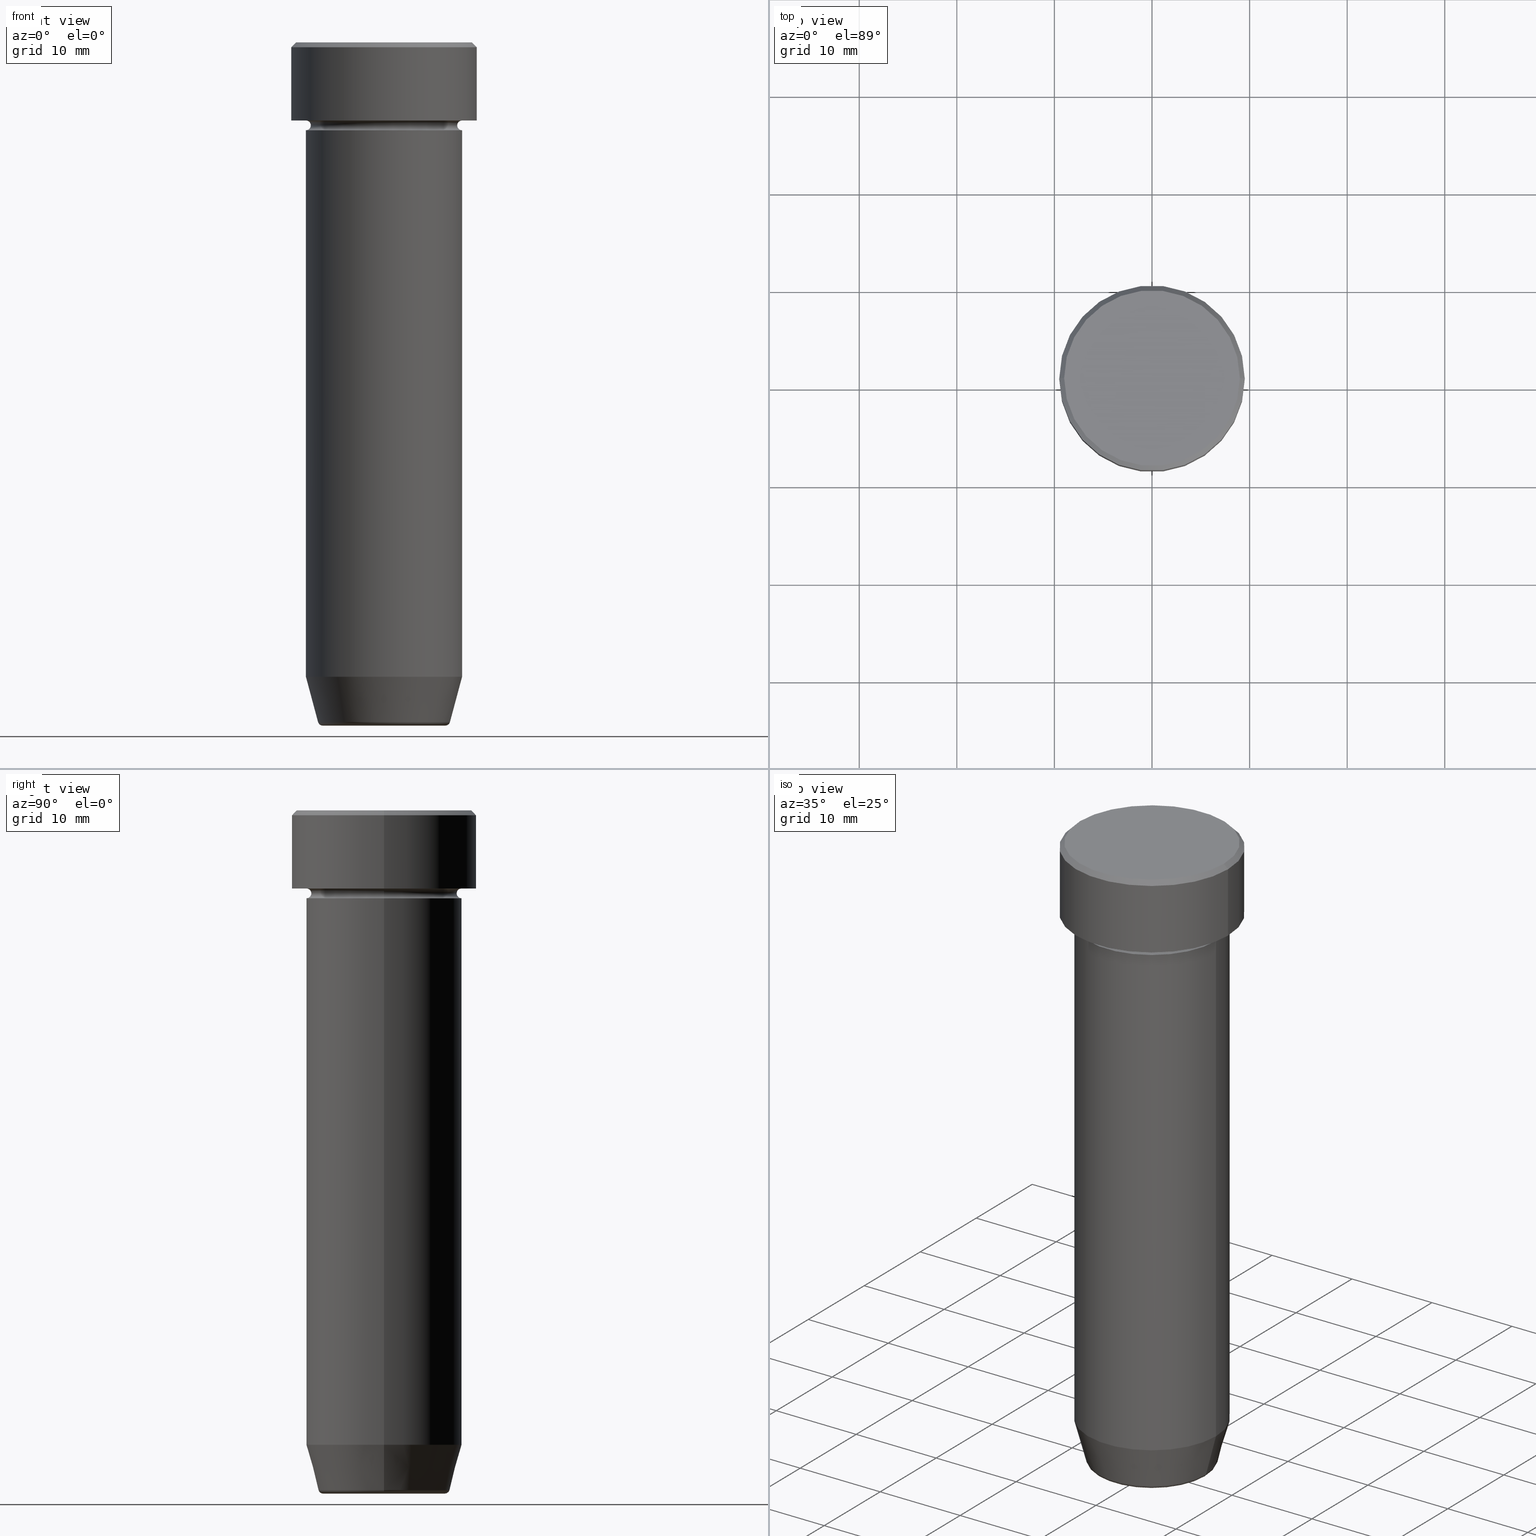
[diagram: canonical four-view strip — front | top / right | iso, engineering-drawing reading convention]
A machine part, canonical four-view strip (front | top / right | iso — engineering-drawing reading convention). The complete STEP part file that produces these views, byte-faithful:
ISO-10303-21;
HEADER;
FILE_DESCRIPTION (( 'STEP AP203' ),
    '1' );
FILE_NAME ('1d72.STEP',
    '2024-01-02T23:17:22',
    ( '' ),
    ( '' ),
    'SwSTEP 2.0',
    'SolidWorks 2019',
    '' );
FILE_SCHEMA (( 'CONFIG_CONTROL_DESIGN' ));
ENDSEC;

DATA;
#1 = CARTESIAN_POINT ( 'NONE',  ( 0.000000000000000000, 0.000000000000000000, 0.000000000000000000 ) ) ;
#2 =( NAMED_UNIT ( * ) SI_UNIT ( $, .STERADIAN. ) SOLID_ANGLE_UNIT ( ) );
#3 = DIRECTION ( 'NONE',  ( 1.000000000000000000, 0.000000000000000000, 0.000000000000000000 ) ) ;
#4 = PERSON_AND_ORGANIZATION ( #116, #417 ) ;
#5 = FACE_OUTER_BOUND ( 'NONE', #109, .T. ) ;
#6 = VERTEX_POINT ( 'NONE', #561 ) ;
#7 =( GEOMETRIC_REPRESENTATION_CONTEXT ( 3 ) GLOBAL_UNCERTAINTY_ASSIGNED_CONTEXT ( ( #211 ) ) GLOBAL_UNIT_ASSIGNED_CONTEXT ( ( #135, #467, #2 ) ) REPRESENTATION_CONTEXT ( 'NONE', 'WORKASPACE' ) );
#8 = LOCAL_TIME ( 0, 17, 22.00000000000000000, #306 ) ;
#9 = EDGE_LOOP ( 'NONE', ( #315, #324, #99, #50 ) ) ;
#10 = DIRECTION ( 'NONE',  ( 0.000000000000000000, 0.000000000000000000, -1.000000000000000000 ) ) ;
#11 = ORIENTED_EDGE ( 'NONE', *, *, #424, .T. ) ;
#12 = CYLINDRICAL_SURFACE ( 'NONE', #425, 8.000000000000000000 ) ;
#13 = APPROVAL_STATUS ( 'not_yet_approved' ) ;
#14 = PLANE ( 'NONE',  #85 ) ;
#15 = ORIENTED_EDGE ( 'NONE', *, *, #545, .T. ) ;
#16 = EDGE_CURVE ( 'NONE', #115, #524, #221, .T. ) ;
#17 = FACE_OUTER_BOUND ( 'NONE', #598, .T. ) ;
#18 = CIRCLE ( 'NONE', #490, 6.759553456999436882 ) ;
#19 = CARTESIAN_POINT ( 'NONE',  ( 0.000000000000000000, 0.000000000000000000, -70.00000000000000000 ) ) ;
#20 = PLANE ( 'NONE',  #501 ) ;
#21 = LINE ( 'NONE', #195, #298 ) ;
#22 = DIRECTION ( 'NONE',  ( 1.000000000000000000, 0.000000000000000000, 0.000000000000000000 ) ) ;
#23 = DIRECTION ( 'NONE',  ( 0.000000000000000000, 0.000000000000000000, -1.000000000000000000 ) ) ;
#24 = DIRECTION ( 'NONE',  ( 1.000000000000000000, 0.000000000000000000, 0.000000000000000000 ) ) ;
#25 = DIRECTION ( 'NONE',  ( -0.000000000000000000, -0.000000000000000000, 1.000000000000000000 ) ) ;
#26 = DATE_TIME_ROLE ( 'classification_date' ) ;
#27 = EDGE_CURVE ( 'NONE', #331, #524, #161, .T. ) ;
#28 = EDGE_LOOP ( 'NONE', ( #505, #496, #212, #230 ) ) ;
#29 = DIRECTION ( 'NONE',  ( 1.000000000000000000, 0.000000000000000000, 0.000000000000000000 ) ) ;
#30 = CARTESIAN_POINT ( 'NONE',  ( 0.000000000000000000, 0.000000000000000000, 0.000000000000000000 ) ) ;
#31 = VECTOR ( 'NONE', #511, 1000.000000000000000 ) ;
#32 = EDGE_CURVE ( 'NONE', #414, #43, #80, .T. ) ;
#33 = MANIFOLD_SOLID_BREP ( 'Zaoblit4', #362 ) ;
#34 = CONICAL_SURFACE ( 'NONE', #374, 6.660254037844381081, 0.2617993877991502405 ) ;
#35 = AXIS2_PLACEMENT_3D ( 'NONE', #581, #447, #354 ) ;
#36 = CYLINDRICAL_SURFACE ( 'NONE', #408, 9.500000000000000000 ) ;
#37 = CARTESIAN_POINT ( 'NONE',  ( 8.000000000000000000, 0.000000000000000000, 0.000000000000000000 ) ) ;
#38 = CIRCLE ( 'NONE', #535, 0.5000000000000004441 ) ;
#39 = DIRECTION ( 'NONE',  ( -0.2588190451025214611, 3.169619151431774186E-17, 0.9659258262890679791 ) ) ;
#40 = VERTEX_POINT ( 'NONE', #566 ) ;
#41 = MANIFOLD_SOLID_BREP ( 'Zkosen�1', #557 ) ;
#42 = DIRECTION ( 'NONE',  ( -0.000000000000000000, -0.000000000000000000, 1.000000000000000000 ) ) ;
#43 = VERTEX_POINT ( 'NONE', #90 ) ;
#44 = COORDINATED_UNIVERSAL_TIME_OFFSET ( 1, 0, .AHEAD. ) ;
#45 = VERTEX_POINT ( 'NONE', #570 ) ;
#46 = PRODUCT ( '1d72', '1d72', '', ( #416 ) ) ;
#47 = DIRECTION ( 'NONE',  ( 1.000000000000000000, 0.000000000000000000, 0.000000000000000000 ) ) ;
#48 = CIRCLE ( 'NONE', #286, 0.5000000000000004441 ) ;
#49 = ADVANCED_FACE ( 'NONE', ( #17 ), #34, .T. ) ;
#50 = ORIENTED_EDGE ( 'NONE', *, *, #243, .F. ) ;
#51 = LOCAL_TIME ( 0, 17, 22.00000000000000000, #523 ) ;
#52 = ORIENTED_EDGE ( 'NONE', *, *, #348, .T. ) ;
#53 = ORIENTED_EDGE ( 'NONE', *, *, #255, .F. ) ;
#54 = CARTESIAN_POINT ( 'NONE',  ( 0.000000000000000000, 0.000000000000000000, 0.000000000000000000 ) ) ;
#55 = DATE_AND_TIME ( #471, #205 ) ;
#56 = EDGE_CURVE ( 'NONE', #43, #45, #291, .T. ) ;
#57 = EDGE_LOOP ( 'NONE', ( #53, #317, #474, #314 ) ) ;
#58 = ORIENTED_EDGE ( 'NONE', *, *, #371, .T. ) ;
#59 = AXIS2_PLACEMENT_3D ( 'NONE', #532, #528, #29 ) ;
#60 = TOROIDAL_SURFACE ( 'NONE', #381, 6.276590543854900339, 0.5000000000000000000 ) ;
#61 = EDGE_CURVE ( 'NONE', #498, #188, #453, .T. ) ;
#62 = CARTESIAN_POINT ( 'NONE',  ( 0.000000000000000000, 0.000000000000000000, -9.000000000000001776 ) ) ;
#63 = APPROVAL_STATUS ( 'not_yet_approved' ) ;
#64 = CARTESIAN_POINT ( 'NONE',  ( 0.000000000000000000, 0.000000000000000000, -8.500000000000000000 ) ) ;
#65 = DIRECTION ( 'NONE',  ( 1.000000000000000000, 0.000000000000000000, 0.000000000000000000 ) ) ;
#66 = DIRECTION ( 'NONE',  ( -0.000000000000000000, -0.000000000000000000, 1.000000000000000000 ) ) ;
#67 = DIRECTION ( 'NONE',  ( -0.000000000000000000, -0.000000000000000000, 1.000000000000000000 ) ) ;
#68 = ADVANCED_FACE ( 'NONE', ( #69 ), #441, .F. ) ;
#69 = FACE_OUTER_BOUND ( 'NONE', #473, .T. ) ;
#70 = AXIS2_PLACEMENT_3D ( 'NONE', #360, #361, #548 ) ;
#71 = DIRECTION ( 'NONE',  ( 1.000000000000000000, 0.000000000000000000, 0.000000000000000000 ) ) ;
#72 = APPROVAL_DATE_TIME ( #55, #147 ) ;
#73 = AXIS2_PLACEMENT_3D ( 'NONE', #569, #284, #65 ) ;
#74 = CARTESIAN_POINT ( 'NONE',  ( 0.000000000000000000, 0.000000000000000000, -65.00000000000000000 ) ) ;
#75 = CARTESIAN_POINT ( 'NONE',  ( 0.000000000000000000, 0.000000000000000000, -0.4999999999999968914 ) ) ;
#76 = PERSON_AND_ORGANIZATION ( #116, #417 ) ;
#77 = FACE_OUTER_BOUND ( 'NONE', #57, .T. ) ;
#78 = ADVANCED_FACE ( 'NONE', ( #297 ), #288, .F. ) ;
#79 = DIRECTION ( 'NONE',  ( 1.000000000000000000, 0.000000000000000000, 0.000000000000000000 ) ) ;
#80 = CIRCLE ( 'NONE', #218, 6.276590543854900339 ) ;
#81 = PRODUCT_RELATED_PRODUCT_CATEGORY ( 'detail', '', ( #46 ) ) ;
#82 = DIRECTION ( 'NONE',  ( 1.000000000000000000, 0.000000000000000000, 0.000000000000000000 ) ) ;
#83 = ORIENTED_EDGE ( 'NONE', *, *, #567, .T. ) ;
#84 = FACE_OUTER_BOUND ( 'NONE', #303, .T. ) ;
#85 = AXIS2_PLACEMENT_3D ( 'NONE', #254, #481, #168 ) ;
#86 = ADVANCED_FACE ( 'NONE', ( #77 ), #292, .T. ) ;
#87 = EDGE_LOOP ( 'NONE', ( #200, #52, #527, #236 ) ) ;
#88 = EDGE_CURVE ( 'NONE', #342, #334, #507, .T. ) ;
#89 = CARTESIAN_POINT ( 'NONE',  ( -9.000000000000001776, 0.000000000000000000, 0.000000000000000000 ) ) ;
#90 = CARTESIAN_POINT ( 'NONE',  ( -6.276590543854900339, 7.982336011935116411E-16, -70.00000000000000000 ) ) ;
#91 = DIRECTION ( 'NONE',  ( 1.000000000000000000, 0.000000000000000000, 0.000000000000000000 ) ) ;
#92 = ORIENTED_EDGE ( 'NONE', *, *, #545, .F. ) ;
#93 = AXIS2_PLACEMENT_3D ( 'NONE', #74, #250, #479 ) ;
#94 = EDGE_CURVE ( 'NONE', #414, #293, #48, .T. ) ;
#95 = DIRECTION ( 'NONE',  ( -0.000000000000000000, -0.000000000000000000, 1.000000000000000000 ) ) ;
#96 = EDGE_CURVE ( 'NONE', #240, #334, #233, .T. ) ;
#97 = PERSON_AND_ORGANIZATION ( #116, #417 ) ;
#98 = CALENDAR_DATE ( 2024, 3, 1 ) ;
#99 = ORIENTED_EDGE ( 'NONE', *, *, #94, .T. ) ;
#100 = LINE ( 'NONE', #500, #204 ) ;
#101 = LOCAL_TIME ( 0, 17, 22.00000000000000000, #44 ) ;
#102 = CARTESIAN_POINT ( 'NONE',  ( 0.000000000000000000, 0.000000000000000000, 0.000000000000000000 ) ) ;
#103 = APPROVAL_DATE_TIME ( #169, #333 ) ;
#104 = ORIENTED_EDGE ( 'NONE', *, *, #371, .F. ) ;
#105 = CYLINDRICAL_SURFACE ( 'NONE', #73, 8.000000000000000000 ) ;
#106 = AXIS2_PLACEMENT_3D ( 'NONE', #244, #151, #344 ) ;
#107 = DIRECTION ( 'NONE',  ( 1.000000000000000000, 0.000000000000000000, 0.000000000000000000 ) ) ;
#108 = DIRECTION ( 'NONE',  ( -1.000000000000000000, 0.000000000000000000, 0.000000000000000000 ) ) ;
#109 = EDGE_LOOP ( 'NONE', ( #468, #404, #299, #134 ) ) ;
#110 = FACE_OUTER_BOUND ( 'NONE', #9, .T. ) ;
#111 = AXIS2_PLACEMENT_3D ( 'NONE', #133, #565, #552 ) ;
#112 = CARTESIAN_POINT ( 'NONE',  ( 8.000000000000000000, 0.000000000000000000, -22.00000000000000000 ) ) ;
#113 = APPROVAL_ROLE ( '' ) ;
#114 = DIRECTION ( 'NONE',  ( 0.000000000000000000, 0.000000000000000000, -1.000000000000000000 ) ) ;
#115 = VERTEX_POINT ( 'NONE', #302 ) ;
#116 = PERSON ( 'NEUR�EN�', 'NEUR�EN�', 'NEUR�EN�', ('NEUR�EN�'), ('NEUR�EN�'), ('NEUR�EN�') ) ;
#117 = CARTESIAN_POINT ( 'NONE',  ( -8.000000000000000000, 9.797174393178825657E-16, 0.000000000000000000 ) ) ;
#118 = ADVANCED_FACE ( 'NONE', ( #433 ), #12, .T. ) ;
#119 = AXIS2_PLACEMENT_3D ( 'NONE', #327, #383, #521 ) ;
#120 = ORIENTED_EDGE ( 'NONE', *, *, #435, .F. ) ;
#121 = DIRECTION ( 'NONE',  ( -0.000000000000000000, -0.000000000000000000, 1.000000000000000000 ) ) ;
#122 = EDGE_LOOP ( 'NONE', ( #443, #310 ) ) ;
#123 = CARTESIAN_POINT ( 'NONE',  ( 8.000000000000000000, 0.000000000000000000, -9.000000000000001776 ) ) ;
#124 = CARTESIAN_POINT ( 'NONE',  ( 8.000000000000000000, 0.000000000000000000, -65.00000000000000000 ) ) ;
#125 = ORIENTED_EDGE ( 'NONE', *, *, #170, .F. ) ;
#126 = DIRECTION ( 'NONE',  ( 1.000000000000000000, 0.000000000000000000, 0.000000000000000000 ) ) ;
#127 = ADVANCED_FACE ( 'NONE', ( #110 ), #173, .T. ) ;
#128 = AXIS2_PLACEMENT_3D ( 'NONE', #276, #466, #281 ) ;
#129 = DIRECTION ( 'NONE',  ( 1.000000000000000000, 0.000000000000000000, 0.000000000000000000 ) ) ;
#130 = TOROIDAL_SURFACE ( 'NONE', #403, 8.000000000000000000, 0.5000000000000000000 ) ;
#131 = ORIENTED_EDGE ( 'NONE', *, *, #577, .T. ) ;
#132 = APPROVAL ( #63, 'NEUR�EN�' ) ;
#133 = CARTESIAN_POINT ( 'NONE',  ( 0.000000000000000000, 0.000000000000000000, -8.500000000000000000 ) ) ;
#134 = ORIENTED_EDGE ( 'NONE', *, *, #320, .T. ) ;
#135 =( LENGTH_UNIT ( ) NAMED_UNIT ( * ) SI_UNIT ( .MILLI., .METRE. ) );
#136 = CYLINDRICAL_SURFACE ( 'NONE', #427, 8.000000000000000000 ) ;
#137 = VERTEX_POINT ( 'NONE', #185 ) ;
#138 = CARTESIAN_POINT ( 'NONE',  ( 0.000000000000000000, 0.000000000000000000, -70.00000000000000000 ) ) ;
#139 = AXIS2_PLACEMENT_3D ( 'NONE', #54, #422, #3 ) ;
#140 = CARTESIAN_POINT ( 'NONE',  ( 9.500000000000000000, 0.000000000000000000, 0.000000000000000000 ) ) ;
#141 = DIRECTION ( 'NONE',  ( 1.000000000000000000, 0.000000000000000000, 0.000000000000000000 ) ) ;
#142 = EDGE_LOOP ( 'NONE', ( #229, #393 ) ) ;
#143 = FACE_OUTER_BOUND ( 'NONE', #534, .T. ) ;
#144 = DIRECTION ( 'NONE',  ( 1.000000000000000000, 0.000000000000000000, 0.000000000000000000 ) ) ;
#145 = FACE_OUTER_BOUND ( 'NONE', #122, .T. ) ;
#146 = APPROVAL_PERSON_ORGANIZATION ( #97, #132, #376 ) ;
#147 = APPROVAL ( #13, 'NEUR�EN�' ) ;
#148 = EDGE_CURVE ( 'NONE', #342, #40, #165, .T. ) ;
#149 = CARTESIAN_POINT ( 'NONE',  ( 0.000000000000000000, 0.000000000000000000, 0.000000000000000000 ) ) ;
#150 = DIRECTION ( 'NONE',  ( -1.224646799147353207E-16, 1.000000000000000000, 0.000000000000000000 ) ) ;
#151 = DIRECTION ( 'NONE',  ( 1.224646799147353207E-16, 1.000000000000000000, 0.000000000000000000 ) ) ;
#152 = CARTESIAN_POINT ( 'NONE',  ( 0.000000000000000000, 0.000000000000000000, -9.000000000000001776 ) ) ;
#153 = DIRECTION ( 'NONE',  ( -1.000000000000000000, 0.000000000000000000, -0.000000000000000000 ) ) ;
#154 = ADVANCED_FACE ( 'NONE', ( #484, #395 ), #20, .T. ) ;
#155 = APPROVAL_STATUS ( 'not_yet_approved' ) ;
#156 = EDGE_LOOP ( 'NONE', ( #470, #58 ) ) ;
#157 = AXIS2_PLACEMENT_3D ( 'NONE', #149, #540, #82 ) ;
#158 = CC_DESIGN_APPROVAL ( #147, ( #465 ) ) ;
#159 = DIRECTION ( 'NONE',  ( 1.000000000000000000, 0.000000000000000000, 0.000000000000000000 ) ) ;
#160 = EDGE_CURVE ( 'NONE', #524, #331, #464, .T. ) ;
#161 = CIRCLE ( 'NONE', #506, 9.500000000000000000 ) ;
#162 = ORIENTED_EDGE ( 'NONE', *, *, #96, .T. ) ;
#163 = ORIENTED_EDGE ( 'NONE', *, *, #231, .T. ) ;
#164 = ORIENTED_EDGE ( 'NONE', *, *, #266, .T. ) ;
#165 = CIRCLE ( 'NONE', #456, 0.5000000000000004441 ) ;
#166 = CARTESIAN_POINT ( 'NONE',  ( 6.276590543854900339, 0.000000000000000000, -70.00000000000000000 ) ) ;
#167 = CC_DESIGN_APPROVAL ( #333, ( #459 ) ) ;
#168 = DIRECTION ( 'NONE',  ( -1.000000000000000000, 0.000000000000000000, -0.000000000000000000 ) ) ;
#169 = DATE_AND_TIME ( #510, #8 ) ;
#170 = EDGE_CURVE ( 'NONE', #115, #412, #213, .T. ) ;
#171 = VERTEX_POINT ( 'NONE', #124 ) ;
#172 = DIRECTION ( 'NONE',  ( -0.000000000000000000, -0.000000000000000000, 1.000000000000000000 ) ) ;
#173 = TOROIDAL_SURFACE ( 'NONE', #269, 6.276590543854900339, 0.5000000000000000000 ) ;
#174 = TOROIDAL_SURFACE ( 'NONE', #111, 8.000000000000000000, 0.5000000000000000000 ) ;
#175 = ORIENTED_EDGE ( 'NONE', *, *, #56, .T. ) ;
#176 = DIRECTION ( 'NONE',  ( -0.000000000000000000, -0.000000000000000000, 1.000000000000000000 ) ) ;
#177 = ORIENTED_EDGE ( 'NONE', *, *, #442, .T. ) ;
#178 = AXIS2_PLACEMENT_3D ( 'NONE', #492, #531, #79 ) ;
#179 = ORIENTED_EDGE ( 'NONE', *, *, #61, .T. ) ;
#180 = APPROVAL_DATE_TIME ( #519, #132 ) ;
#181 = CIRCLE ( 'NONE', #546, 7.500000000000000000 ) ;
#182 = DIRECTION ( 'NONE',  ( -0.000000000000000000, -0.000000000000000000, 1.000000000000000000 ) ) ;
#183 = PERSON_AND_ORGANIZATION ( #116, #417 ) ;
#184 = ORIENTED_EDGE ( 'NONE', *, *, #442, .F. ) ;
#185 = CARTESIAN_POINT ( 'NONE',  ( -8.000000000000000000, 9.797174393178825657E-16, -22.00000000000000000 ) ) ;
#186 = CARTESIAN_POINT ( 'NONE',  ( 9.000000000000001776, 1.132798289211301698E-15, 0.000000000000000000 ) ) ;
#187 = DIRECTION ( 'NONE',  ( -1.000000000000000000, 0.000000000000000000, 0.000000000000000000 ) ) ;
#188 = VERTEX_POINT ( 'NONE', #220 ) ;
#189 = CARTESIAN_POINT ( 'NONE',  ( 0.000000000000000000, 0.000000000000000000, 0.000000000000000000 ) ) ;
#190 = VECTOR ( 'NONE', #311, 1000.000000000000000 ) ;
#191 = DIRECTION ( 'NONE',  ( 1.000000000000000000, 0.000000000000000000, 0.000000000000000000 ) ) ;
#192 = ORIENTED_EDGE ( 'NONE', *, *, #160, .F. ) ;
#193 = CARTESIAN_POINT ( 'NONE',  ( 0.000000000000000000, 9.500000000000000000, -8.000000000000000000 ) ) ;
#194 = VERTEX_POINT ( 'NONE', #596 ) ;
#195 = CARTESIAN_POINT ( 'NONE',  ( 8.000000000000000000, 0.000000000000000000, 0.000000000000000000 ) ) ;
#196 = CARTESIAN_POINT ( 'NONE',  ( 0.000000000000000000, 0.000000000000000000, -69.50000000000000000 ) ) ;
#197 = ORIENTED_EDGE ( 'NONE', *, *, #266, .F. ) ;
#198 = CARTESIAN_POINT ( 'NONE',  ( -8.000000000000000000, 0.000000000000000000, -8.000000000000000000 ) ) ;
#199 = DIRECTION ( 'NONE',  ( -0.000000000000000000, -0.000000000000000000, 1.000000000000000000 ) ) ;
#200 = ORIENTED_EDGE ( 'NONE', *, *, #216, .F. ) ;
#201 = CARTESIAN_POINT ( 'NONE',  ( 6.276590543854900339, 0.000000000000000000, -69.50000000000000000 ) ) ;
#202 = EDGE_LOOP ( 'NONE', ( #163, #399, #120, #391 ) ) ;
#203 = AXIS2_PLACEMENT_3D ( 'NONE', #64, #238, #300 ) ;
#204 = VECTOR ( 'NONE', #39, 1000.000000000000114 ) ;
#205 = LOCAL_TIME ( 0, 17, 22.00000000000000000, #390 ) ;
#206 = CARTESIAN_POINT ( 'NONE',  ( 7.500000000000000000, 0.000000000000000000, -8.500000000000000000 ) ) ;
#207 = ORIENTED_EDGE ( 'NONE', *, *, #16, .F. ) ;
#208 = DIRECTION ( 'NONE',  ( -1.000000000000000000, 0.000000000000000000, 0.000000000000000000 ) ) ;
#209 = AXIS2_PLACEMENT_3D ( 'NONE', #253, #586, #436 ) ;
#210 = DIRECTION ( 'NONE',  ( -0.000000000000000000, -0.000000000000000000, 1.000000000000000000 ) ) ;
#211 = UNCERTAINTY_MEASURE_WITH_UNIT (LENGTH_MEASURE( 1.000000000000000082E-05 ), #135, 'distance_accuracy_value', 'NONE');
#212 = ORIENTED_EDGE ( 'NONE', *, *, #320, .F. ) ;
#213 = CIRCLE ( 'NONE', #70, 9.500000000000000000 ) ;
#214 = AXIS2_PLACEMENT_3D ( 'NONE', #319, #410, #191 ) ;
#215 = CIRCLE ( 'NONE', #592, 6.276590543854900339 ) ;
#216 = EDGE_CURVE ( 'NONE', #412, #331, #377, .T. ) ;
#217 = ORIENTED_EDGE ( 'NONE', *, *, #355, .F. ) ;
#218 = AXIS2_PLACEMENT_3D ( 'NONE', #386, #508, #144 ) ;
#219 = APPLICATION_PROTOCOL_DEFINITION ( 'international standard', 'config_control_design', 1994, #337 ) ;
#220 = CARTESIAN_POINT ( 'NONE',  ( -8.000000000000000000, 9.797174393178825657E-16, -22.00000000000000000 ) ) ;
#221 = LINE ( 'NONE', #140, #356 ) ;
#222 = CALENDAR_DATE ( 2024, 3, 1 ) ;
#223 = DIRECTION ( 'NONE',  ( -0.000000000000000000, -0.000000000000000000, 1.000000000000000000 ) ) ;
#224 = AXIS2_PLACEMENT_3D ( 'NONE', #340, #533, #114 ) ;
#225 = AXIS2_PLACEMENT_3D ( 'NONE', #578, #345, #24 ) ;
#226 = CARTESIAN_POINT ( 'NONE',  ( -8.000000000000000000, 9.797174393178825657E-16, 0.000000000000000000 ) ) ;
#227 = EDGE_LOOP ( 'NONE', ( #463, #83, #263, #270 ) ) ;
#228 = DATE_AND_TIME ( #222, #101 ) ;
#229 = ORIENTED_EDGE ( 'NONE', *, *, #370, .T. ) ;
#230 = ORIENTED_EDGE ( 'NONE', *, *, #537, .F. ) ;
#231 = EDGE_CURVE ( 'NONE', #194, #342, #181, .T. ) ;
#232 = PERSON_AND_ORGANIZATION ( #116, #417 ) ;
#233 = CIRCLE ( 'NONE', #450, 8.000000000000000000 ) ;
#234 = VECTOR ( 'NONE', #560, 999.9999999999998863 ) ;
#235 = DATE_AND_TIME ( #98, #51 ) ;
#236 = ORIENTED_EDGE ( 'NONE', *, *, #160, .T. ) ;
#237 = DIRECTION ( 'NONE',  ( 0.000000000000000000, -1.000000000000000000, 0.000000000000000000 ) ) ;
#238 = DIRECTION ( 'NONE',  ( 0.000000000000000000, 0.000000000000000000, -1.000000000000000000 ) ) ;
#239 = DIRECTION ( 'NONE',  ( 0.000000000000000000, 0.000000000000000000, -1.000000000000000000 ) ) ;
#240 = VERTEX_POINT ( 'NONE', #385 ) ;
#241 = FACE_OUTER_BOUND ( 'NONE', #227, .T. ) ;
#242 = CARTESIAN_POINT ( 'NONE',  ( 0.000000000000000000, 0.000000000000000000, -8.000000000000000000 ) ) ;
#243 = EDGE_CURVE ( 'NONE', #45, #293, #562, .T. ) ;
#244 = CARTESIAN_POINT ( 'NONE',  ( -6.276590543854900339, 7.686606519090449012E-16, -69.50000000000000000 ) ) ;
#245 = CIRCLE ( 'NONE', #590, 8.000000000000000000 ) ;
#246 = AXIS2_PLACEMENT_3D ( 'NONE', #268, #549, #541 ) ;
#247 = EDGE_LOOP ( 'NONE', ( #104, #175, #184, #429 ) ) ;
#248 = PERSON_AND_ORGANIZATION ( #116, #417 ) ;
#249 = APPLICATION_CONTEXT ( 'configuration controlled 3d designs of mechanical parts and assemblies' ) ;
#250 = DIRECTION ( 'NONE',  ( -0.000000000000000000, -0.000000000000000000, 1.000000000000000000 ) ) ;
#251 = DIRECTION ( 'NONE',  ( 0.000000000000000000, 0.000000000000000000, -1.000000000000000000 ) ) ;
#252 = ADVANCED_FACE ( 'NONE', ( #143 ), #584, .T. ) ;
#253 = CARTESIAN_POINT ( 'NONE',  ( 0.000000000000000000, 2.449293598294708880E-15, -70.00000000000000000 ) ) ;
#254 = CARTESIAN_POINT ( 'NONE',  ( 0.000000000000000000, 8.000000000000000000, -22.00000000000000000 ) ) ;
#255 = EDGE_CURVE ( 'NONE', #307, #438, #513, .T. ) ;
#256 = VERTEX_POINT ( 'NONE', #379 ) ;
#257 = CIRCLE ( 'NONE', #574, 8.000000000000000000 ) ;
#258 = ORIENTED_EDGE ( 'NONE', *, *, #243, .T. ) ;
#259 = EDGE_CURVE ( 'NONE', #194, #240, #38, .T. ) ;
#260 = EDGE_CURVE ( 'NONE', #194, #544, #316, .T. ) ;
#261 = CARTESIAN_POINT ( 'NONE',  ( 0.000000000000000000, 0.000000000000000000, -8.500000000000000000 ) ) ;
#262 = CARTESIAN_POINT ( 'NONE',  ( 0.000000000000000000, 0.000000000000000000, -8.500000000000000000 ) ) ;
#263 = ORIENTED_EDGE ( 'NONE', *, *, #260, .T. ) ;
#264 = DIRECTION ( 'NONE',  ( 0.000000000000000000, 0.000000000000000000, -1.000000000000000000 ) ) ;
#265 = CARTESIAN_POINT ( 'NONE',  ( 9.500000000000000000, 0.000000000000000000, -0.4999999999999968914 ) ) ;
#266 = EDGE_CURVE ( 'NONE', #188, #498, #597, .T. ) ;
#267 = ORIENTED_EDGE ( 'NONE', *, *, #469, .F. ) ;
#268 = CARTESIAN_POINT ( 'NONE',  ( 0.000000000000000000, 0.000000000000000000, -8.000000000000000000 ) ) ;
#269 = AXIS2_PLACEMENT_3D ( 'NONE', #196, #66, #526 ) ;
#270 = ORIENTED_EDGE ( 'NONE', *, *, #358, .F. ) ;
#271 = ORIENTED_EDGE ( 'NONE', *, *, #413, .F. ) ;
#272 = ORIENTED_EDGE ( 'NONE', *, *, #348, .F. ) ;
#273 = SECURITY_CLASSIFICATION_LEVEL ( 'unclassified' ) ;
#274 = ORIENTED_EDGE ( 'NONE', *, *, #355, .T. ) ;
#275 = LINE ( 'NONE', #226, #31 ) ;
#276 = CARTESIAN_POINT ( 'NONE',  ( 0.000000000000000000, 0.000000000000000000, -69.62940952255127058 ) ) ;
#277 = AXIS2_PLACEMENT_3D ( 'NONE', #242, #488, #187 ) ;
#278 = ORIENTED_EDGE ( 'NONE', *, *, #259, .T. ) ;
#279 = DIRECTION ( 'NONE',  ( 1.000000000000000000, 0.000000000000000000, 0.000000000000000000 ) ) ;
#280 = APPLICATION_PROTOCOL_DEFINITION ( 'international standard', 'config_control_design', 1994, #249 ) ;
#281 = DIRECTION ( 'NONE',  ( -1.000000000000000000, 0.000000000000000000, 0.000000000000000000 ) ) ;
#282 = EDGE_CURVE ( 'NONE', #6, #137, #245, .T. ) ;
#283 = CC_DESIGN_PERSON_AND_ORGANIZATION_ASSIGNMENT ( #599, #517, ( #46 ) ) ;
#284 = DIRECTION ( 'NONE',  ( -0.000000000000000000, -0.000000000000000000, 1.000000000000000000 ) ) ;
#285 = PRODUCT_DEFINITION_SHAPE ( 'NONE', 'NONE',  #482 ) ;
#286 = AXIS2_PLACEMENT_3D ( 'NONE', #201, #237, #480 ) ;
#287 = CIRCLE ( 'NONE', #277, 8.000000000000000000 ) ;
#288 = PLANE ( 'NONE',  #209 ) ;
#289 = LINE ( 'NONE', #486, #318 ) ;
#290 = DIRECTION ( 'NONE',  ( 1.000000000000000000, 0.000000000000000000, 0.000000000000000000 ) ) ;
#291 = CIRCLE ( 'NONE', #106, 0.5000000000000004441 ) ;
#292 = CONICAL_SURFACE ( 'NONE', #35, 9.000000000000001776, 0.7853981633974501664 ) ;
#293 = VERTEX_POINT ( 'NONE', #439 ) ;
#294 = ORIENTED_EDGE ( 'NONE', *, *, #424, .F. ) ;
#295 = FACE_OUTER_BOUND ( 'NONE', #202, .T. ) ;
#296 = AXIS2_PLACEMENT_3D ( 'NONE', #138, #95, #279 ) ;
#297 = FACE_OUTER_BOUND ( 'NONE', #156, .T. ) ;
#298 = VECTOR ( 'NONE', #398, 1000.000000000000000 ) ;
#299 = ORIENTED_EDGE ( 'NONE', *, *, #88, .T. ) ;
#300 = DIRECTION ( 'NONE',  ( -1.000000000000000000, 0.000000000000000000, 0.000000000000000000 ) ) ;
#301 = DIRECTION ( 'NONE',  ( 1.000000000000000000, 0.000000000000000000, 0.000000000000000000 ) ) ;
#302 = CARTESIAN_POINT ( 'NONE',  ( 9.500000000000000000, 0.000000000000000000, -8.000000000000000000 ) ) ;
#303 = EDGE_LOOP ( 'NONE', ( #267, #495, #419, #192 ) ) ;
#304 = DIRECTION ( 'NONE',  ( 0.000000000000000000, 0.000000000000000000, -1.000000000000000000 ) ) ;
#305 = ADVANCED_FACE ( 'NONE', ( #241 ), #476, .F. ) ;
#306 = COORDINATED_UNIVERSAL_TIME_OFFSET ( 1, 0, .AHEAD. ) ;
#307 = VERTEX_POINT ( 'NONE', #186 ) ;
#308 = FACE_OUTER_BOUND ( 'NONE', #247, .T. ) ;
#309 = CC_DESIGN_PERSON_AND_ORGANIZATION_ASSIGNMENT ( #248, #372, ( #465 ) ) ;
#310 = ORIENTED_EDGE ( 'NONE', *, *, #564, .F. ) ;
#311 = DIRECTION ( 'NONE',  ( -0.000000000000000000, -0.000000000000000000, 1.000000000000000000 ) ) ;
#312 = CIRCLE ( 'NONE', #246, 9.500000000000000000 ) ;
#313 = ORIENTED_EDGE ( 'NONE', *, *, #88, .F. ) ;
#314 = ORIENTED_EDGE ( 'NONE', *, *, #559, .F. ) ;
#315 = ORIENTED_EDGE ( 'NONE', *, *, #56, .F. ) ;
#316 = CIRCLE ( 'NONE', #415, 0.5000000000000004441 ) ;
#317 = ORIENTED_EDGE ( 'NONE', *, *, #469, .T. ) ;
#318 = VECTOR ( 'NONE', #483, 1000.000000000000114 ) ;
#319 = CARTESIAN_POINT ( 'NONE',  ( 0.000000000000000000, 0.000000000000000000, -65.00000000000000000 ) ) ;
#320 = EDGE_CURVE ( 'NONE', #334, #240, #257, .T. ) ;
#321 = DIRECTION ( 'NONE',  ( 0.000000000000000000, 0.000000000000000000, -1.000000000000000000 ) ) ;
#322 = ADVANCED_FACE ( 'NONE', ( #295 ), #325, .F. ) ;
#323 = CC_DESIGN_PERSON_AND_ORGANIZATION_ASSIGNMENT ( #183, #365, ( #459 ) ) ;
#324 = ORIENTED_EDGE ( 'NONE', *, *, #32, .F. ) ;
#325 = TOROIDAL_SURFACE ( 'NONE', #407, 8.000000000000000000, 0.5000000000000000000 ) ;
#326 = VECTOR ( 'NONE', #210, 1000.000000000000000 ) ;
#327 = CARTESIAN_POINT ( 'NONE',  ( 0.000000000000000000, 0.000000000000000000, -22.00000000000000000 ) ) ;
#328 = CARTESIAN_POINT ( 'NONE',  ( 0.000000000000000000, 0.000000000000000000, -0.4999999999999968914 ) ) ;
#329 = CARTESIAN_POINT ( 'NONE',  ( -8.000000000000000000, 9.797174393178825657E-16, -8.500000000000000000 ) ) ;
#330 = DIRECTION ( 'NONE',  ( -0.000000000000000000, -0.000000000000000000, 1.000000000000000000 ) ) ;
#331 = VERTEX_POINT ( 'NONE', #400 ) ;
#332 = LINE ( 'NONE', #89, #234 ) ;
#333 = APPROVAL ( #155, 'NEUR�EN�' ) ;
#334 = VERTEX_POINT ( 'NONE', #123 ) ;
#335 = CARTESIAN_POINT ( 'NONE',  ( -8.000000000000000000, 0.000000000000000000, -8.500000000000000000 ) ) ;
#336 = LINE ( 'NONE', #572, #478 ) ;
#337 = APPLICATION_CONTEXT ( 'configuration controlled 3d designs of mechanical parts and assemblies' ) ;
#338 = ORIENTED_EDGE ( 'NONE', *, *, #96, .F. ) ;
#339 = AXIS2_PLACEMENT_3D ( 'NONE', #594, #363, #126 ) ;
#340 = CARTESIAN_POINT ( 'NONE',  ( 8.000000000000000000, 0.000000000000000000, -8.500000000000000000 ) ) ;
#341 = CARTESIAN_POINT ( 'NONE',  ( 0.000000000000000000, 0.000000000000000000, -22.00000000000000000 ) ) ;
#342 = VERTEX_POINT ( 'NONE', #206 ) ;
#343 = DIRECTION ( 'NONE',  ( -1.000000000000000000, -1.224646799147353454E-16, 0.000000000000000000 ) ) ;
#344 = DIRECTION ( 'NONE',  ( -1.000000000000000000, 1.224646799147351482E-16, 0.000000000000000000 ) ) ;
#345 = DIRECTION ( 'NONE',  ( -0.000000000000000000, -0.000000000000000000, 1.000000000000000000 ) ) ;
#346 = DIRECTION ( 'NONE',  ( 1.000000000000000000, 0.000000000000000000, 0.000000000000000000 ) ) ;
#347 = DIRECTION ( 'NONE',  ( -0.000000000000000000, -0.000000000000000000, 1.000000000000000000 ) ) ;
#348 = EDGE_CURVE ( 'NONE', #412, #115, #312, .T. ) ;
#349 = DIRECTION ( 'NONE',  ( -0.000000000000000000, -0.000000000000000000, 1.000000000000000000 ) ) ;
#350 = LOCAL_TIME ( 0, 17, 22.00000000000000000, #556 ) ;
#351 = ADVANCED_FACE ( 'NONE', ( #308 ), #60, .T. ) ;
#352 = FACE_OUTER_BOUND ( 'NONE', #364, .T. ) ;
#353 = EDGE_LOOP ( 'NONE', ( #271, #555, #582, #338 ) ) ;
#354 = DIRECTION ( 'NONE',  ( -1.000000000000000000, 0.000000000000000000, 0.000000000000000000 ) ) ;
#355 = EDGE_CURVE ( 'NONE', #171, #256, #440, .T. ) ;
#356 = VECTOR ( 'NONE', #182, 1000.000000000000000 ) ;
#357 = AXIS2_PLACEMENT_3D ( 'NONE', #30, #199, #290 ) ;
#358 = EDGE_CURVE ( 'NONE', #40, #544, #287, .T. ) ;
#359 = DIRECTION ( 'NONE',  ( -1.000000000000000000, 0.000000000000000000, 0.000000000000000000 ) ) ;
#360 = CARTESIAN_POINT ( 'NONE',  ( 0.000000000000000000, 0.000000000000000000, -8.000000000000000000 ) ) ;
#361 = DIRECTION ( 'NONE',  ( -0.000000000000000000, -0.000000000000000000, 1.000000000000000000 ) ) ;
#362 = CLOSED_SHELL ( 'NONE', ( #351, #252, #397, #68, #118, #49, #78, #127 ) ) ;
#363 = DIRECTION ( 'NONE',  ( 0.000000000000000000, 0.000000000000000000, 1.000000000000000000 ) ) ;
#364 = EDGE_LOOP ( 'NONE', ( #274, #131, #432, #294 ) ) ;
#365 = PERSON_AND_ORGANIZATION_ROLE ( 'classification_officer' ) ;
#366 = DIRECTION ( 'NONE',  ( -0.000000000000000000, -0.000000000000000000, 1.000000000000000000 ) ) ;
#367 = ADVANCED_BREP_SHAPE_REPRESENTATION ( '1d72', ( #41, #33, #339 ), #7 ) ;
#368 = CONICAL_SURFACE ( 'NONE', #575, 9.000000000000001776, 0.7853981633974501664 ) ;
#369 = APPROVAL_PERSON_ORGANIZATION ( #4, #147, #571 ) ;
#370 = EDGE_CURVE ( 'NONE', #438, #307, #514, .T. ) ;
#371 = EDGE_CURVE ( 'NONE', #43, #414, #215, .T. ) ;
#372 = PERSON_AND_ORGANIZATION_ROLE ( 'creator' ) ;
#373 = CC_DESIGN_DATE_AND_TIME_ASSIGNMENT ( #235, #387, ( #482 ) ) ;
#374 = AXIS2_PLACEMENT_3D ( 'NONE', #580, #349, #485 ) ;
#375 = ORIENTED_EDGE ( 'NONE', *, *, #472, .T. ) ;
#376 = APPROVAL_ROLE ( '' ) ;
#377 = LINE ( 'NONE', #509, #392 ) ;
#378 = EDGE_LOOP ( 'NONE', ( #430, #448, #421, #207 ) ) ;
#379 = CARTESIAN_POINT ( 'NONE',  ( -8.000000000000000000, 9.797174393178825657E-16, -65.00000000000000000 ) ) ;
#380 = ADVANCED_FACE ( 'NONE', ( #394 ), #389, .T. ) ;
#381 = AXIS2_PLACEMENT_3D ( 'NONE', #595, #366, #504 ) ;
#382 = ORIENTED_EDGE ( 'NONE', *, *, #231, .F. ) ;
#383 = DIRECTION ( 'NONE',  ( -0.000000000000000000, -0.000000000000000000, 1.000000000000000000 ) ) ;
#384 = DIRECTION ( 'NONE',  ( 1.000000000000000000, 0.000000000000000000, 0.000000000000000000 ) ) ;
#385 = CARTESIAN_POINT ( 'NONE',  ( -8.000000000000000000, 9.797174393178825657E-16, -9.000000000000001776 ) ) ;
#386 = CARTESIAN_POINT ( 'NONE',  ( 0.000000000000000000, 0.000000000000000000, -70.00000000000000000 ) ) ;
#387 = DATE_TIME_ROLE ( 'creation_date' ) ;
#388 = FACE_OUTER_BOUND ( 'NONE', #28, .T. ) ;
#389 = CYLINDRICAL_SURFACE ( 'NONE', #225, 9.500000000000000000 ) ;
#390 = COORDINATED_UNIVERSAL_TIME_OFFSET ( 1, 0, .AHEAD. ) ;
#391 = ORIENTED_EDGE ( 'NONE', *, *, #260, .F. ) ;
#392 = VECTOR ( 'NONE', #223, 1000.000000000000000 ) ;
#393 = ORIENTED_EDGE ( 'NONE', *, *, #255, .T. ) ;
#394 = FACE_OUTER_BOUND ( 'NONE', #87, .T. ) ;
#395 = FACE_OUTER_BOUND ( 'NONE', #512, .T. ) ;
#396 = ORIENTED_EDGE ( 'NONE', *, *, #454, .F. ) ;
#397 = ADVANCED_FACE ( 'NONE', ( #352 ), #573, .T. ) ;
#398 = DIRECTION ( 'NONE',  ( -0.000000000000000000, -0.000000000000000000, 1.000000000000000000 ) ) ;
#399 = ORIENTED_EDGE ( 'NONE', *, *, #148, .T. ) ;
#400 = CARTESIAN_POINT ( 'NONE',  ( -9.500000000000000000, 1.163414459189985485E-15, -0.4999999999999968914 ) ) ;
#401 = ADVANCED_FACE ( 'NONE', ( #576 ), #494, .T. ) ;
#402 = DIRECTION ( 'NONE',  ( -0.000000000000000000, -0.000000000000000000, 1.000000000000000000 ) ) ;
#403 = AXIS2_PLACEMENT_3D ( 'NONE', #261, #42, #141 ) ;
#404 = ORIENTED_EDGE ( 'NONE', *, *, #567, .F. ) ;
#405 = LINE ( 'NONE', #37, #326 ) ;
#406 = CARTESIAN_POINT ( 'NONE',  ( 0.000000000000000000, 0.000000000000000000, -8.000000000000000000 ) ) ;
#407 = AXIS2_PLACEMENT_3D ( 'NONE', #262, #264, #455 ) ;
#408 = AXIS2_PLACEMENT_3D ( 'NONE', #493, #121, #446 ) ;
#409 = CC_DESIGN_SECURITY_CLASSIFICATION ( #459, ( #465 ) ) ;
#410 = DIRECTION ( 'NONE',  ( -0.000000000000000000, -0.000000000000000000, 1.000000000000000000 ) ) ;
#411 = ADVANCED_FACE ( 'NONE', ( #145 ), #14, .T. ) ;
#412 = VERTEX_POINT ( 'NONE', #452 ) ;
#413 = EDGE_CURVE ( 'NONE', #137, #240, #542, .T. ) ;
#414 = VERTEX_POINT ( 'NONE', #166 ) ;
#415 = AXIS2_PLACEMENT_3D ( 'NONE', #335, #431, #10 ) ;
#416 = MECHANICAL_CONTEXT ( 'NONE', #337, 'mechanical' ) ;
#417 = ORGANIZATION ( 'NEUR�EN�', 'NEUR�EN�', '' ) ;
#418 = FACE_OUTER_BOUND ( 'NONE', #353, .T. ) ;
#419 = ORIENTED_EDGE ( 'NONE', *, *, #559, .T. ) ;
#420 = SHAPE_DEFINITION_REPRESENTATION ( #285, #367 ) ;
#421 = ORIENTED_EDGE ( 'NONE', *, *, #27, .T. ) ;
#422 = DIRECTION ( 'NONE',  ( -0.000000000000000000, -0.000000000000000000, 1.000000000000000000 ) ) ;
#423 = ORIENTED_EDGE ( 'NONE', *, *, #358, .T. ) ;
#424 = EDGE_CURVE ( 'NONE', #171, #498, #405, .T. ) ;
#425 = AXIS2_PLACEMENT_3D ( 'NONE', #189, #402, #346 ) ;
#426 = PERSON_AND_ORGANIZATION_ROLE ( 'creator' ) ;
#427 = AXIS2_PLACEMENT_3D ( 'NONE', #1, #516, #129 ) ;
#428 = FACE_OUTER_BOUND ( 'NONE', #378, .T. ) ;
#429 = ORIENTED_EDGE ( 'NONE', *, *, #94, .F. ) ;
#430 = ORIENTED_EDGE ( 'NONE', *, *, #170, .T. ) ;
#431 = DIRECTION ( 'NONE',  ( -0.000000000000000000, -1.000000000000000000, -0.000000000000000000 ) ) ;
#432 = ORIENTED_EDGE ( 'NONE', *, *, #61, .F. ) ;
#433 = FACE_OUTER_BOUND ( 'NONE', #550, .T. ) ;
#434 = CARTESIAN_POINT ( 'NONE',  ( 8.000000000000000000, 9.797174393178825657E-16, -8.500000000000000000 ) ) ;
#435 = EDGE_CURVE ( 'NONE', #544, #40, #451, .T. ) ;
#436 = DIRECTION ( 'NONE',  ( 1.000000000000000000, 0.000000000000000000, 0.000000000000000000 ) ) ;
#437 = ADVANCED_FACE ( 'NONE', ( #497 ), #130, .F. ) ;
#438 = VERTEX_POINT ( 'NONE', #563 ) ;
#439 = CARTESIAN_POINT ( 'NONE',  ( 6.759553456999437770, 0.000000000000000000, -69.62940952255127058 ) ) ;
#440 = CIRCLE ( 'NONE', #214, 8.000000000000000000 ) ;
#441 = PLANE ( 'NONE',  #445 ) ;
#442 = EDGE_CURVE ( 'NONE', #293, #45, #18, .T. ) ;
#443 = ORIENTED_EDGE ( 'NONE', *, *, #282, .F. ) ;
#444 = CC_DESIGN_PERSON_AND_ORGANIZATION_ASSIGNMENT ( #475, #558, ( #465 ) ) ;
#445 = AXIS2_PLACEMENT_3D ( 'NONE', #539, #239, #153 ) ;
#446 = DIRECTION ( 'NONE',  ( 1.000000000000000000, 0.000000000000000000, 0.000000000000000000 ) ) ;
#447 = DIRECTION ( 'NONE',  ( 0.000000000000000000, 0.000000000000000000, -1.000000000000000000 ) ) ;
#448 = ORIENTED_EDGE ( 'NONE', *, *, #216, .T. ) ;
#449 = DIRECTION ( 'NONE',  ( -0.000000000000000000, -0.000000000000000000, 1.000000000000000000 ) ) ;
#450 = AXIS2_PLACEMENT_3D ( 'NONE', #62, #25, #107 ) ;
#451 = CIRCLE ( 'NONE', #547, 8.000000000000000000 ) ;
#452 = CARTESIAN_POINT ( 'NONE',  ( -9.500000000000000000, 1.163414459189985485E-15, -8.000000000000000000 ) ) ;
#453 = CIRCLE ( 'NONE', #178, 8.000000000000000000 ) ;
#454 = EDGE_CURVE ( 'NONE', #293, #171, #289, .T. ) ;
#455 = DIRECTION ( 'NONE',  ( -1.000000000000000000, 0.000000000000000000, 0.000000000000000000 ) ) ;
#456 = AXIS2_PLACEMENT_3D ( 'NONE', #434, #150, #343 ) ;
#457 = CIRCLE ( 'NONE', #119, 8.000000000000000000 ) ;
#458 = ADVANCED_FACE ( 'NONE', ( #388 ), #105, .T. ) ;
#459 = SECURITY_CLASSIFICATION ( '', '', #273 ) ;
#460 = ORIENTED_EDGE ( 'NONE', *, *, #577, .F. ) ;
#461 = ORIENTED_EDGE ( 'NONE', *, *, #454, .T. ) ;
#462 = EDGE_LOOP ( 'NONE', ( #530, #423 ) ) ;
#463 = ORIENTED_EDGE ( 'NONE', *, *, #148, .F. ) ;
#464 = CIRCLE ( 'NONE', #487, 9.500000000000000000 ) ;
#465 = PRODUCT_DEFINITION_FORMATION_WITH_SPECIFIED_SOURCE ( 'LIBOVOLN�', '', #46, .NOT_KNOWN. ) ;
#466 = DIRECTION ( 'NONE',  ( -0.000000000000000000, -0.000000000000000000, 1.000000000000000000 ) ) ;
#467 =( NAMED_UNIT ( * ) PLANE_ANGLE_UNIT ( ) SI_UNIT ( $, .RADIAN. ) );
#468 = ORIENTED_EDGE ( 'NONE', *, *, #259, .F. ) ;
#469 = EDGE_CURVE ( 'NONE', #307, #524, #336, .T. ) ;
#470 = ORIENTED_EDGE ( 'NONE', *, *, #32, .T. ) ;
#471 = CALENDAR_DATE ( 2024, 3, 1 ) ;
#472 = EDGE_CURVE ( 'NONE', #256, #171, #502, .T. ) ;
#473 = EDGE_LOOP ( 'NONE', ( #179, #164 ) ) ;
#474 = ORIENTED_EDGE ( 'NONE', *, *, #27, .F. ) ;
#475 = PERSON_AND_ORGANIZATION ( #116, #417 ) ;
#476 = TOROIDAL_SURFACE ( 'NONE', #203, 8.000000000000000000, 0.5000000000000000000 ) ;
#477 = CARTESIAN_POINT ( 'NONE',  ( 0.000000000000000000, 0.000000000000000000, -8.500000000000000000 ) ) ;
#478 = VECTOR ( 'NONE', #520, 999.9999999999998863 ) ;
#479 = DIRECTION ( 'NONE',  ( 1.000000000000000000, 0.000000000000000000, 0.000000000000000000 ) ) ;
#480 = DIRECTION ( 'NONE',  ( 0.000000000000000000, 0.000000000000000000, -1.000000000000000000 ) ) ;
#481 = DIRECTION ( 'NONE',  ( 0.000000000000000000, 0.000000000000000000, -1.000000000000000000 ) ) ;
#482 = PRODUCT_DEFINITION ( 'NEZN�M�', '', #465, #589 ) ;
#483 = DIRECTION ( 'NONE',  ( 0.2588190451025214611, 0.000000000000000000, 0.9659258262890679791 ) ) ;
#484 = FACE_BOUND ( 'NONE', #462, .T. ) ;
#485 = DIRECTION ( 'NONE',  ( 1.000000000000000000, 0.000000000000000000, 0.000000000000000000 ) ) ;
#486 = CARTESIAN_POINT ( 'NONE',  ( 6.660254037844381081, 0.000000000000000000, -70.00000000000000000 ) ) ;
#487 = AXIS2_PLACEMENT_3D ( 'NONE', #75, #251, #593 ) ;
#488 = DIRECTION ( 'NONE',  ( -0.000000000000000000, -0.000000000000000000, 1.000000000000000000 ) ) ;
#489 = DIRECTION ( 'NONE',  ( -1.000000000000000000, 0.000000000000000000, -0.000000000000000000 ) ) ;
#490 = AXIS2_PLACEMENT_3D ( 'NONE', #529, #330, #108 ) ;
#491 = ADVANCED_FACE ( 'NONE', ( #428 ), #36, .T. ) ;
#492 = CARTESIAN_POINT ( 'NONE',  ( 0.000000000000000000, 0.000000000000000000, -22.00000000000000000 ) ) ;
#493 = CARTESIAN_POINT ( 'NONE',  ( 0.000000000000000000, 0.000000000000000000, 0.000000000000000000 ) ) ;
#494 = PLANE ( 'NONE',  #157 ) ;
#495 = ORIENTED_EDGE ( 'NONE', *, *, #370, .F. ) ;
#496 = ORIENTED_EDGE ( 'NONE', *, *, #413, .T. ) ;
#497 = FACE_OUTER_BOUND ( 'NONE', #543, .T. ) ;
#498 = VERTEX_POINT ( 'NONE', #112 ) ;
#499 = CC_DESIGN_APPROVAL ( #132, ( #482 ) ) ;
#500 = CARTESIAN_POINT ( 'NONE',  ( -6.660254037844381081, 8.156458788954356817E-16, -70.00000000000000000 ) ) ;
#501 = AXIS2_PLACEMENT_3D ( 'NONE', #193, #579, #489 ) ;
#502 = CIRCLE ( 'NONE', #93, 8.000000000000000000 ) ;
#503 = ADVANCED_FACE ( 'NONE', ( #84 ), #368, .T. ) ;
#504 = DIRECTION ( 'NONE',  ( 1.000000000000000000, 0.000000000000000000, 0.000000000000000000 ) ) ;
#505 = ORIENTED_EDGE ( 'NONE', *, *, #282, .T. ) ;
#506 = AXIS2_PLACEMENT_3D ( 'NONE', #328, #321, #384 ) ;
#507 = CIRCLE ( 'NONE', #224, 0.5000000000000004441 ) ;
#508 = DIRECTION ( 'NONE',  ( 0.000000000000000000, 0.000000000000000000, -1.000000000000000000 ) ) ;
#509 = CARTESIAN_POINT ( 'NONE',  ( -9.500000000000000000, 1.163414459189985485E-15, 0.000000000000000000 ) ) ;
#510 = CALENDAR_DATE ( 2024, 3, 1 ) ;
#511 = DIRECTION ( 'NONE',  ( -0.000000000000000000, -0.000000000000000000, 1.000000000000000000 ) ) ;
#512 = EDGE_LOOP ( 'NONE', ( #125, #272 ) ) ;
#513 = CIRCLE ( 'NONE', #139, 9.000000000000001776 ) ;
#514 = CIRCLE ( 'NONE', #536, 9.000000000000001776 ) ;
#515 = CALENDAR_DATE ( 2024, 3, 1 ) ;
#516 = DIRECTION ( 'NONE',  ( -0.000000000000000000, -0.000000000000000000, 1.000000000000000000 ) ) ;
#517 = PERSON_AND_ORGANIZATION_ROLE ( 'design_owner' ) ;
#518 = DIRECTION ( 'NONE',  ( 1.224646799147353207E-16, 1.000000000000000000, 0.000000000000000000 ) ) ;
#519 = DATE_AND_TIME ( #515, #350 ) ;
#520 = DIRECTION ( 'NONE',  ( 0.7071067811865489050, 8.659560562354950115E-17, -0.7071067811865462405 ) ) ;
#521 = DIRECTION ( 'NONE',  ( 1.000000000000000000, 0.000000000000000000, 0.000000000000000000 ) ) ;
#522 = ORIENTED_EDGE ( 'NONE', *, *, #472, .F. ) ;
#523 = COORDINATED_UNIVERSAL_TIME_OFFSET ( 1, 0, .AHEAD. ) ;
#524 = VERTEX_POINT ( 'NONE', #265 ) ;
#525 = CC_DESIGN_DATE_AND_TIME_ASSIGNMENT ( #228, #26, ( #459 ) ) ;
#526 = DIRECTION ( 'NONE',  ( 1.000000000000000000, 0.000000000000000000, 0.000000000000000000 ) ) ;
#527 = ORIENTED_EDGE ( 'NONE', *, *, #16, .T. ) ;
#528 = DIRECTION ( 'NONE',  ( -0.000000000000000000, -0.000000000000000000, 1.000000000000000000 ) ) ;
#529 = CARTESIAN_POINT ( 'NONE',  ( 0.000000000000000000, 0.000000000000000000, -69.62940952255127058 ) ) ;
#530 = ORIENTED_EDGE ( 'NONE', *, *, #435, .T. ) ;
#531 = DIRECTION ( 'NONE',  ( -0.000000000000000000, -0.000000000000000000, 1.000000000000000000 ) ) ;
#532 = CARTESIAN_POINT ( 'NONE',  ( 0.000000000000000000, 0.000000000000000000, -22.00000000000000000 ) ) ;
#533 = DIRECTION ( 'NONE',  ( 0.000000000000000000, -1.000000000000000000, 0.000000000000000000 ) ) ;
#534 = EDGE_LOOP ( 'NONE', ( #177, #15, #217, #396 ) ) ;
#535 = AXIS2_PLACEMENT_3D ( 'NONE', #329, #518, #568 ) ;
#536 = AXIS2_PLACEMENT_3D ( 'NONE', #102, #449, #159 ) ;
#537 = EDGE_CURVE ( 'NONE', #6, #334, #21, .T. ) ;
#538 = APPROVAL_PERSON_ORGANIZATION ( #76, #333, #113 ) ;
#539 = CARTESIAN_POINT ( 'NONE',  ( 0.000000000000000000, 0.000000000000000000, -22.00000000000000000 ) ) ;
#540 = DIRECTION ( 'NONE',  ( 0.000000000000000000, -0.000000000000000000, 1.000000000000000000 ) ) ;
#541 = DIRECTION ( 'NONE',  ( 1.000000000000000000, 0.000000000000000000, 0.000000000000000000 ) ) ;
#542 = LINE ( 'NONE', #117, #190 ) ;
#543 = EDGE_LOOP ( 'NONE', ( #382, #278, #162, #313 ) ) ;
#544 = VERTEX_POINT ( 'NONE', #198 ) ;
#545 = EDGE_CURVE ( 'NONE', #45, #256, #100, .T. ) ;
#546 = AXIS2_PLACEMENT_3D ( 'NONE', #477, #176, #91 ) ;
#547 = AXIS2_PLACEMENT_3D ( 'NONE', #406, #588, #359 ) ;
#548 = DIRECTION ( 'NONE',  ( 1.000000000000000000, 0.000000000000000000, 0.000000000000000000 ) ) ;
#549 = DIRECTION ( 'NONE',  ( -0.000000000000000000, -0.000000000000000000, 1.000000000000000000 ) ) ;
#550 = EDGE_LOOP ( 'NONE', ( #460, #375, #11, #197 ) ) ;
#551 = ADVANCED_FACE ( 'NONE', ( #5 ), #174, .F. ) ;
#552 = DIRECTION ( 'NONE',  ( 1.000000000000000000, 0.000000000000000000, 0.000000000000000000 ) ) ;
#553 = AXIS2_PLACEMENT_3D ( 'NONE', #554, #172, #47 ) ;
#554 = CARTESIAN_POINT ( 'NONE',  ( 0.000000000000000000, 0.000000000000000000, -8.500000000000000000 ) ) ;
#555 = ORIENTED_EDGE ( 'NONE', *, *, #564, .T. ) ;
#556 = COORDINATED_UNIVERSAL_TIME_OFFSET ( 1, 0, .AHEAD. ) ;
#557 = CLOSED_SHELL ( 'NONE', ( #86, #322, #437, #458, #491, #411, #401, #380, #154, #591, #551, #305, #503 ) ) ;
#558 = PERSON_AND_ORGANIZATION_ROLE ( 'design_supplier' ) ;
#559 = EDGE_CURVE ( 'NONE', #438, #331, #332, .T. ) ;
#560 = DIRECTION ( 'NONE',  ( -0.7071067811865489050, 0.000000000000000000, -0.7071067811865462405 ) ) ;
#561 = CARTESIAN_POINT ( 'NONE',  ( 8.000000000000000000, 0.000000000000000000, -22.00000000000000000 ) ) ;
#562 = CIRCLE ( 'NONE', #128, 6.759553456999436882 ) ;
#563 = CARTESIAN_POINT ( 'NONE',  ( -9.000000000000001776, 0.000000000000000000, 0.000000000000000000 ) ) ;
#564 = EDGE_CURVE ( 'NONE', #137, #6, #457, .T. ) ;
#565 = DIRECTION ( 'NONE',  ( -0.000000000000000000, -0.000000000000000000, 1.000000000000000000 ) ) ;
#566 = CARTESIAN_POINT ( 'NONE',  ( 8.000000000000000000, 9.797174393178825657E-16, -8.000000000000000000 ) ) ;
#567 = EDGE_CURVE ( 'NONE', #342, #194, #585, .T. ) ;
#568 = DIRECTION ( 'NONE',  ( -1.000000000000000000, 1.224646799147353454E-16, 0.000000000000000000 ) ) ;
#569 = CARTESIAN_POINT ( 'NONE',  ( 0.000000000000000000, 0.000000000000000000, 0.000000000000000000 ) ) ;
#570 = CARTESIAN_POINT ( 'NONE',  ( -6.759553456999437770, 9.037619948979306213E-16, -69.62940952255127058 ) ) ;
#571 = APPROVAL_ROLE ( '' ) ;
#572 = CARTESIAN_POINT ( 'NONE',  ( 9.000000000000001776, 1.102182119232617911E-15, 0.000000000000000000 ) ) ;
#573 = CYLINDRICAL_SURFACE ( 'NONE', #357, 8.000000000000000000 ) ;
#574 = AXIS2_PLACEMENT_3D ( 'NONE', #152, #347, #22 ) ;
#575 = AXIS2_PLACEMENT_3D ( 'NONE', #583, #23, #208 ) ;
#576 = FACE_OUTER_BOUND ( 'NONE', #142, .T. ) ;
#577 = EDGE_CURVE ( 'NONE', #256, #188, #275, .T. ) ;
#578 = CARTESIAN_POINT ( 'NONE',  ( 0.000000000000000000, 0.000000000000000000, 0.000000000000000000 ) ) ;
#579 = DIRECTION ( 'NONE',  ( 0.000000000000000000, 0.000000000000000000, -1.000000000000000000 ) ) ;
#580 = CARTESIAN_POINT ( 'NONE',  ( 0.000000000000000000, 0.000000000000000000, -70.00000000000000000 ) ) ;
#581 = CARTESIAN_POINT ( 'NONE',  ( 0.000000000000000000, 0.000000000000000000, 0.000000000000000000 ) ) ;
#582 = ORIENTED_EDGE ( 'NONE', *, *, #537, .T. ) ;
#583 = CARTESIAN_POINT ( 'NONE',  ( 0.000000000000000000, 0.000000000000000000, 0.000000000000000000 ) ) ;
#584 = CONICAL_SURFACE ( 'NONE', #296, 6.660254037844381081, 0.2617993877991502405 ) ;
#585 = CIRCLE ( 'NONE', #553, 7.500000000000000000 ) ;
#586 = DIRECTION ( 'NONE',  ( 0.000000000000000000, -0.000000000000000000, 1.000000000000000000 ) ) ;
#587 = CC_DESIGN_PERSON_AND_ORGANIZATION_ASSIGNMENT ( #232, #426, ( #482 ) ) ;
#588 = DIRECTION ( 'NONE',  ( -0.000000000000000000, -0.000000000000000000, 1.000000000000000000 ) ) ;
#589 = DESIGN_CONTEXT ( 'detailed design', #249, 'design' ) ;
#590 = AXIS2_PLACEMENT_3D ( 'NONE', #341, #67, #71 ) ;
#591 = ADVANCED_FACE ( 'NONE', ( #418 ), #136, .T. ) ;
#592 = AXIS2_PLACEMENT_3D ( 'NONE', #19, #304, #301 ) ;
#593 = DIRECTION ( 'NONE',  ( 1.000000000000000000, 0.000000000000000000, 0.000000000000000000 ) ) ;
#594 = CARTESIAN_POINT ( 'NONE',  ( 0.000000000000000000, 0.000000000000000000, 0.000000000000000000 ) ) ;
#595 = CARTESIAN_POINT ( 'NONE',  ( 0.000000000000000000, 0.000000000000000000, -69.50000000000000000 ) ) ;
#596 = CARTESIAN_POINT ( 'NONE',  ( -7.500000000000000000, 9.491012693391985815E-16, -8.500000000000000000 ) ) ;
#597 = CIRCLE ( 'NONE', #59, 8.000000000000000000 ) ;
#598 = EDGE_LOOP ( 'NONE', ( #92, #258, #461, #522 ) ) ;
#599 = PERSON_AND_ORGANIZATION ( #116, #417 ) ;
ENDSEC;
END-ISO-10303-21;
